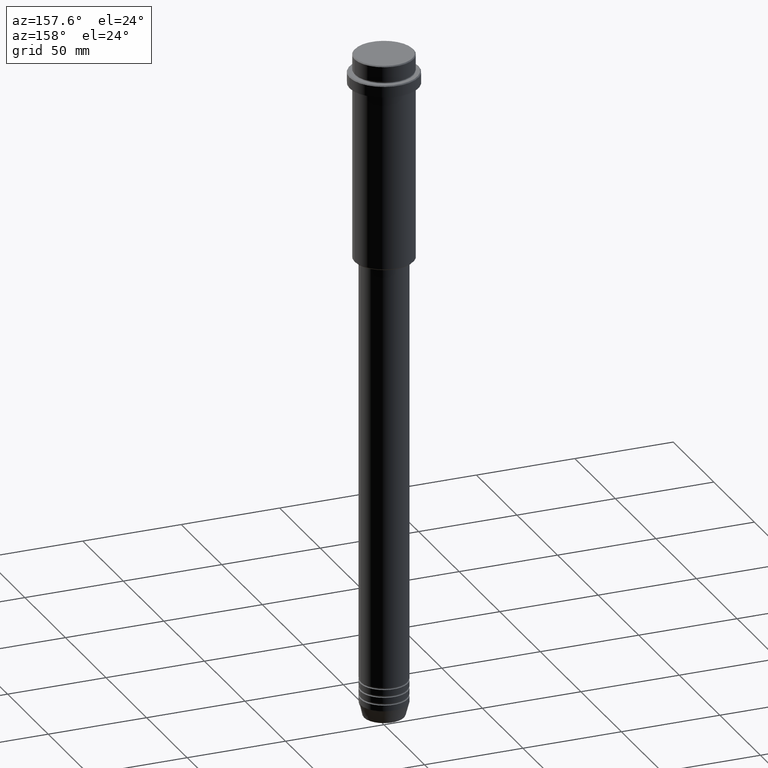
[diagram: clean part render]
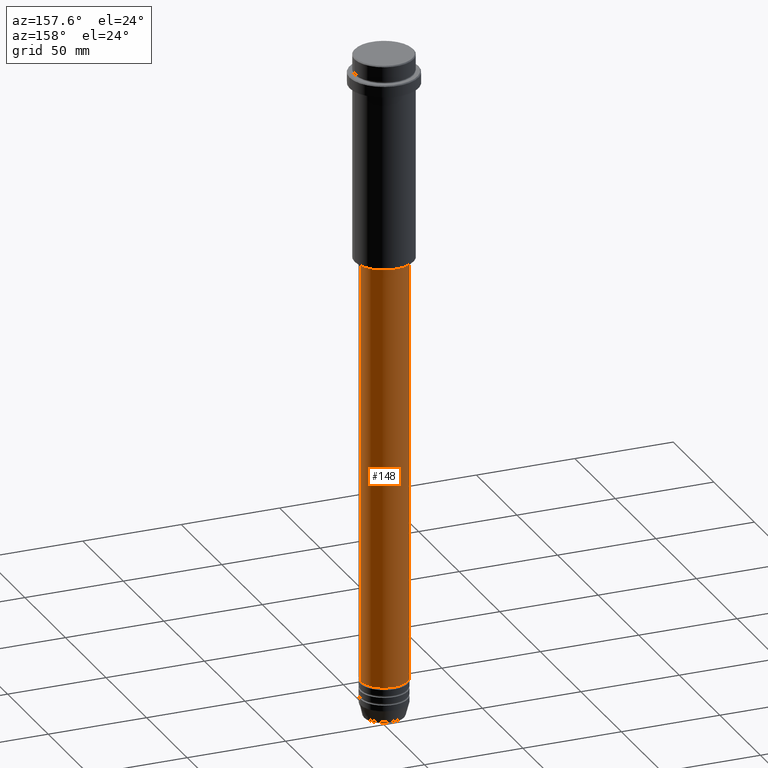
[diagram: same view with one face highlighted and labeled with its STEP entity id]
A machine part, auxiliary view. The second image highlights one B-rep face of the part: STEP entity #148.
In plain terms, the highlighted cylindrical surface (edge-blend (fillet) strip) has radius 12 mm, axis along (-0, -0, 1).
Its self-contained STEP definition (entity closure, byte-faithful):
#38 = VERTEX_POINT ( 'NONE', #1224 ) ;
#117 = EDGE_CURVE ( 'NONE', #914, #900, #1290, .T. ) ;
#148 = ADVANCED_FACE ( 'NONE', ( #1398 ), #1155, .T. ) ;
#155 = ORIENTED_EDGE ( 'NONE', *, *, #661, .T. ) ;
#195 = CARTESIAN_POINT ( 'NONE',  ( -11.99999999999999822, 1.469576158976823750E-15, -105.9999999999999574 ) ) ;
#274 = ORIENTED_EDGE ( 'NONE', *, *, #1317, .F. ) ;
#303 = DIRECTION ( 'NONE',  ( 1.000000000000000000, 0.000000000000000000, 0.000000000000000000 ) ) ;
#353 = EDGE_LOOP ( 'NONE', ( #1077, #155, #274, #660 ) ) ;
#369 = VECTOR ( 'NONE', #521, 1000.000000000000000 ) ;
#385 = DIRECTION ( 'NONE',  ( -0.000000000000000000, -0.000000000000000000, 1.000000000000000000 ) ) ;
#449 = CIRCLE ( 'NONE', #541, 11.99999999999999822 ) ;
#521 = DIRECTION ( 'NONE',  ( -0.000000000000000000, -0.000000000000000000, 1.000000000000000000 ) ) ;
#536 = CARTESIAN_POINT ( 'NONE',  ( 0.000000000000000000, 0.000000000000000000, -320.9999999999998863 ) ) ;
#541 = AXIS2_PLACEMENT_3D ( 'NONE', #1265, #385, #1383 ) ;
#623 = AXIS2_PLACEMENT_3D ( 'NONE', #935, #854, #303 ) ;
#660 = ORIENTED_EDGE ( 'NONE', *, *, #117, .F. ) ;
#661 = EDGE_CURVE ( 'NONE', #38, #666, #729, .T. ) ;
#666 = VERTEX_POINT ( 'NONE', #195 ) ;
#671 = VECTOR ( 'NONE', #1280, 1000.000000000000000 ) ;
#697 = CARTESIAN_POINT ( 'NONE',  ( 12.00000000000000000, 0.000000000000000000, -320.9999999999998863 ) ) ;
#729 = LINE ( 'NONE', #1374, #671 ) ;
#747 = CARTESIAN_POINT ( 'NONE',  ( 12.00000000000000000, 0.000000000000000000, 0.000000000000000000 ) ) ;
#809 = CIRCLE ( 'NONE', #1312, 12.00000000000000000 ) ;
#854 = DIRECTION ( 'NONE',  ( -0.000000000000000000, -0.000000000000000000, 1.000000000000000000 ) ) ;
#870 = DIRECTION ( 'NONE',  ( -0.000000000000000000, -0.000000000000000000, 1.000000000000000000 ) ) ;
#900 = VERTEX_POINT ( 'NONE', #1107 ) ;
#914 = VERTEX_POINT ( 'NONE', #697 ) ;
#935 = CARTESIAN_POINT ( 'NONE',  ( 0.000000000000000000, 0.000000000000000000, 0.000000000000000000 ) ) ;
#1059 = DIRECTION ( 'NONE',  ( 1.000000000000000000, 0.000000000000000000, 0.000000000000000000 ) ) ;
#1077 = ORIENTED_EDGE ( 'NONE', *, *, #1274, .T. ) ;
#1107 = CARTESIAN_POINT ( 'NONE',  ( 11.99999999999999822, 0.000000000000000000, -105.9999999999999574 ) ) ;
#1155 = CYLINDRICAL_SURFACE ( 'NONE', #623, 12.00000000000000000 ) ;
#1224 = CARTESIAN_POINT ( 'NONE',  ( -12.00000000000000000, 1.469576158976823947E-15, -320.9999999999998863 ) ) ;
#1265 = CARTESIAN_POINT ( 'NONE',  ( 0.000000000000000000, 0.000000000000000000, -105.9999999999999574 ) ) ;
#1274 = EDGE_CURVE ( 'NONE', #914, #38, #809, .T. ) ;
#1280 = DIRECTION ( 'NONE',  ( -0.000000000000000000, -0.000000000000000000, 1.000000000000000000 ) ) ;
#1290 = LINE ( 'NONE', #747, #369 ) ;
#1312 = AXIS2_PLACEMENT_3D ( 'NONE', #536, #870, #1059 ) ;
#1317 = EDGE_CURVE ( 'NONE', #900, #666, #449, .T. ) ;
#1374 = CARTESIAN_POINT ( 'NONE',  ( -12.00000000000000000, 1.469576158976823947E-15, 0.000000000000000000 ) ) ;
#1383 = DIRECTION ( 'NONE',  ( 1.000000000000000000, 0.000000000000000000, 0.000000000000000000 ) ) ;
#1398 = FACE_OUTER_BOUND ( 'NONE', #353, .T. ) ;